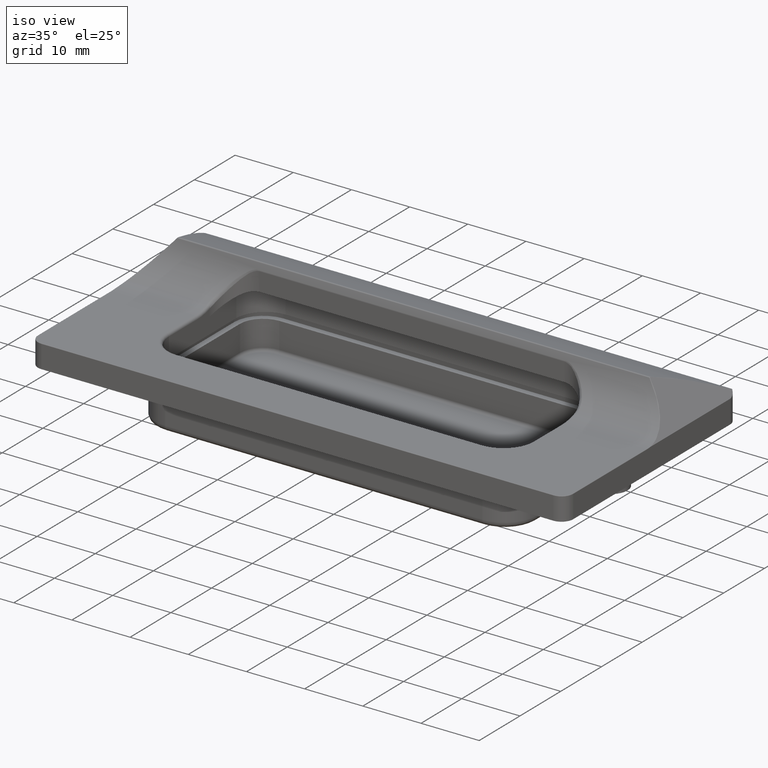
[diagram: clean part render]
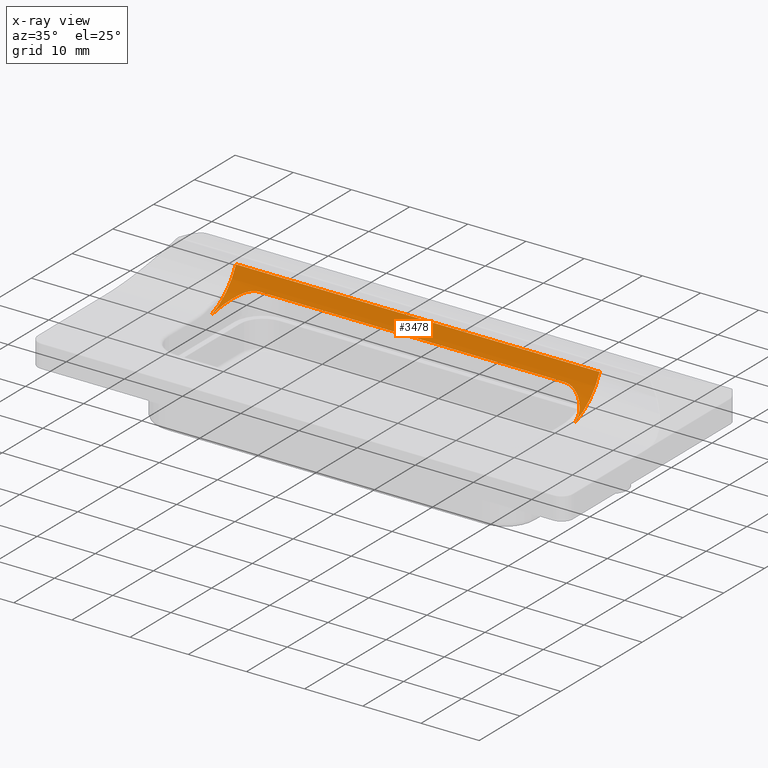
[diagram: x-ray — body ghosted, one internal face saturated and labeled with its STEP entity id]
A machine part, iso view, then the same camera in x-ray: the body is ghosted and one INTERNAL B-rep face — a face not visible from any outside direction — is saturated and labeled: STEP entity #3478.
In plain terms, the highlighted cylindrical surface (partial cylindrical patch) has radius 10.1806 mm, axis along (1, 0, 0).
Its self-contained STEP definition (entity closure, byte-faithful):
#162=LINE('',#6077,#415);
#201=LINE('',#6361,#454);
#203=LINE('',#6374,#456);
#204=LINE('',#6388,#457);
#415=VECTOR('',#4168,52.5);
#454=VECTOR('',#4331,62.5);
#456=VECTOR('',#4349,0.0204134752337692);
#457=VECTOR('',#4350,0.0204134752338092);
#673=CYLINDRICAL_SURFACE('',#3752,10.1805722108145);
#816=FACE_OUTER_BOUND('',#1034,.T.);
#1034=EDGE_LOOP('',(#2616,#2617,#2618,#2619,#2620,#2621,#2622,#2623));
#1231=CIRCLE('',#3680,10.1805722108145);
#1264=CIRCLE('',#3753,10.1805722108145);
#1430=B_SPLINE_CURVE_WITH_KNOTS('',3,(#6058,#6059,#6060,#6061,#6062,#6063,
#6064,#6065,#6066,#6067,#6068,#6069),.UNSPECIFIED.,.F.,.F.,(4,2,2,2,2,4),
(0.806127031757699,0.975026926774165,1.1908370151929,1.38915840859861,1.48831910530147,
1.58747980200432),.UNSPECIFIED.);
#1444=B_SPLINE_CURVE_WITH_KNOTS('',3,(#6376,#6377,#6378,#6379,#6380,#6381,
#6382,#6383,#6384,#6385,#6386,#6387),.UNSPECIFIED.,.F.,.F.,(4,2,2,2,2,4),
(1.58747980200432,1.68664049870718,1.78580119541003,1.98412258881574,2.19993267723448,
2.36883257225094),.UNSPECIFIED.);
#1509=VERTEX_POINT('',#6043);
#1510=VERTEX_POINT('',#6045);
#1514=VERTEX_POINT('',#6055);
#1515=VERTEX_POINT('',#6057);
#1516=VERTEX_POINT('',#6075);
#1579=VERTEX_POINT('',#6359);
#1582=VERTEX_POINT('',#6372);
#1583=VERTEX_POINT('',#6375);
#1872=EDGE_CURVE('',#1510,#1509,#1231,.T.);
#1878=EDGE_CURVE('',#1515,#1514,#1430,.T.);
#1881=EDGE_CURVE('',#1514,#1516,#162,.T.);
#1966=EDGE_CURVE('',#1579,#1510,#201,.T.);
#1972=EDGE_CURVE('',#1582,#1579,#1264,.T.);
#1973=EDGE_CURVE('',#1509,#1515,#203,.T.);
#1974=EDGE_CURVE('',#1516,#1583,#1444,.T.);
#1975=EDGE_CURVE('',#1583,#1582,#204,.T.);
#2616=ORIENTED_EDGE('',*,*,#1972,.T.);
#2617=ORIENTED_EDGE('',*,*,#1966,.T.);
#2618=ORIENTED_EDGE('',*,*,#1872,.T.);
#2619=ORIENTED_EDGE('',*,*,#1973,.T.);
#2620=ORIENTED_EDGE('',*,*,#1878,.T.);
#2621=ORIENTED_EDGE('',*,*,#1881,.T.);
#2622=ORIENTED_EDGE('',*,*,#1974,.T.);
#2623=ORIENTED_EDGE('',*,*,#1975,.T.);
#3478=ADVANCED_FACE('',(#816),#673,.T.);
#3680=AXIS2_PLACEMENT_3D('',#6046,#4155,#4156);
#3752=AXIS2_PLACEMENT_3D('',#6371,#4345,#4346);
#3753=AXIS2_PLACEMENT_3D('',#6373,#4347,#4348);
#4155=DIRECTION('center_axis',(-1.,-2.15315980533364E-15,0.));
#4156=DIRECTION('ref_axis',(0.,-0.324324324324324,0.945945945945946));
#4168=DIRECTION('',(-1.,0.,0.));
#4331=DIRECTION('',(1.,0.,0.));
#4345=DIRECTION('center_axis',(1.,0.,0.));
#4346=DIRECTION('ref_axis',(0.,-0.324324324324324,0.945945945945946));
#4347=DIRECTION('center_axis',(1.,2.28773229316699E-15,0.));
#4348=DIRECTION('ref_axis',(0.,-0.324324324324324,0.945945945945946));
#4349=DIRECTION('',(-1.,0.,0.));
#4350=DIRECTION('',(-1.,0.,0.));
#6043=CARTESIAN_POINT('',(31.25,23.5513513513514,-1.10810810810811));
#6045=CARTESIAN_POINT('',(31.25,29.5575767752765,4.39850201084352));
#6046=CARTESIAN_POINT('Origin',(31.25,20.249544147844,8.52216290212182));
#6055=CARTESIAN_POINT('',(26.25,28.1,2.04031181983389));
#6057=CARTESIAN_POINT('',(31.2295865247662,23.5513513513514,-1.10810810810811));
#6058=CARTESIAN_POINT('Ctrl Pts',(31.2295865247662,23.5513513513514,-1.10810810810811));
#6059=CARTESIAN_POINT('Ctrl Pts',(31.180489891772,24.0930156918644,-0.922394619932197));
#6060=CARTESIAN_POINT('Ctrl Pts',(31.0403927988122,24.6292364825258,-0.685072662590849));
#6061=CARTESIAN_POINT('Ctrl Pts',(30.5481864462844,25.7444695371521,-0.0776817073719403));
#6062=CARTESIAN_POINT('Ctrl Pts',(30.1469788392269,26.2945121123986,0.311550301225683));
#6063=CARTESIAN_POINT('Ctrl Pts',(29.2765597756425,27.1212472433847,0.993084967849696));
#6064=CARTESIAN_POINT('Ctrl Pts',(28.7528598411946,27.4754011848362,1.34160004483503));
#6065=CARTESIAN_POINT('Ctrl Pts',(27.8671098406092,27.842052623852,1.73760479097628));
#6066=CARTESIAN_POINT('Ctrl Pts',(27.5548603610511,27.9378647462056,1.84805756958484));
#6067=CARTESIAN_POINT('Ctrl Pts',(26.9116341561585,28.0668738690653,1.99963948617731));
#6068=CARTESIAN_POINT('Ctrl Pts',(26.5805356556762,28.1,2.0403118198339));
#6069=CARTESIAN_POINT('Ctrl Pts',(26.25,28.1,2.0403118198339));
#6075=CARTESIAN_POINT('',(-26.25,28.1,2.04031181983389));
#6077=CARTESIAN_POINT('',(0.,28.1,2.04031181983389));
#6359=CARTESIAN_POINT('',(-31.25,29.5575767752765,4.39850201084352));
#6361=CARTESIAN_POINT('',(0.,29.5575767752765,4.39850201084352));
#6371=CARTESIAN_POINT('Origin',(0.,20.249544147844,8.52216290212182));
#6372=CARTESIAN_POINT('',(-31.25,23.5513513513514,-1.10810810810811));
#6373=CARTESIAN_POINT('Origin',(-31.25,20.249544147844,8.52216290212182));
#6374=CARTESIAN_POINT('',(0.,23.5513513513514,-1.10810810810811));
#6375=CARTESIAN_POINT('',(-31.2295865247662,23.5513513513514,-1.10810810810811));
#6376=CARTESIAN_POINT('Ctrl Pts',(-26.25,28.1,2.04031181983389));
#6377=CARTESIAN_POINT('Ctrl Pts',(-26.5805356556762,28.1,2.04031181983389));
#6378=CARTESIAN_POINT('Ctrl Pts',(-26.9116341561585,28.0668738690653,1.99963948617731));
#6379=CARTESIAN_POINT('Ctrl Pts',(-27.554860361051,27.9378647462056,1.84805756958483));
#6380=CARTESIAN_POINT('Ctrl Pts',(-27.8671098406092,27.842052623852,1.73760479097627));
#6381=CARTESIAN_POINT('Ctrl Pts',(-28.7528598411946,27.4754011848361,1.34160004483503));
#6382=CARTESIAN_POINT('Ctrl Pts',(-29.2765597756425,27.1212472433847,0.993084967849692));
#6383=CARTESIAN_POINT('Ctrl Pts',(-30.1469788392269,26.2945121123986,0.31155030122568));
#6384=CARTESIAN_POINT('Ctrl Pts',(-30.5481864462844,25.7444695371521,-0.077681707371941));
#6385=CARTESIAN_POINT('Ctrl Pts',(-31.0403927988122,24.6292364825258,-0.685072662590848));
#6386=CARTESIAN_POINT('Ctrl Pts',(-31.180489891772,24.0930156918644,-0.922394619932199));
#6387=CARTESIAN_POINT('Ctrl Pts',(-31.2295865247662,23.5513513513514,-1.10810810810811));
#6388=CARTESIAN_POINT('',(0.,23.5513513513514,-1.10810810810811));